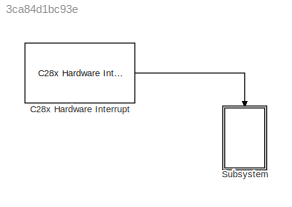
MODEL slx_3ca84d1bc93e
KIND model
CONFIG AbsTol = auto
CONFIG EnableMultiTasking = on
CONFIG FixedStep = auto
CONFIG MaxStep = auto
CONFIG MinStep = auto
CONFIG RelTol = 1e-3
CONFIG SampleTimeConstraint = Unconstrained
CONFIG Solver = FixedStepDiscrete
CONFIG SolverName = FixedStepDiscrete
CONFIG StartTime = 0.0
CONFIG StopTime = 1
BLOCK [Reference] C28x Hardware Interrupt  REF=c2000lib/Scheduling/C28x Hardware Interrupt
  Ports = [0, 1]
  SourceBlock = c2000lib/Scheduling/C28x Hardware Interrupt
  SourceProductBaseCode = TIC2000
  SourceProductName = Embedded Coder Support Package for Texas Instruments C2000 Processors
  SourceType = C28x Interrupt Block
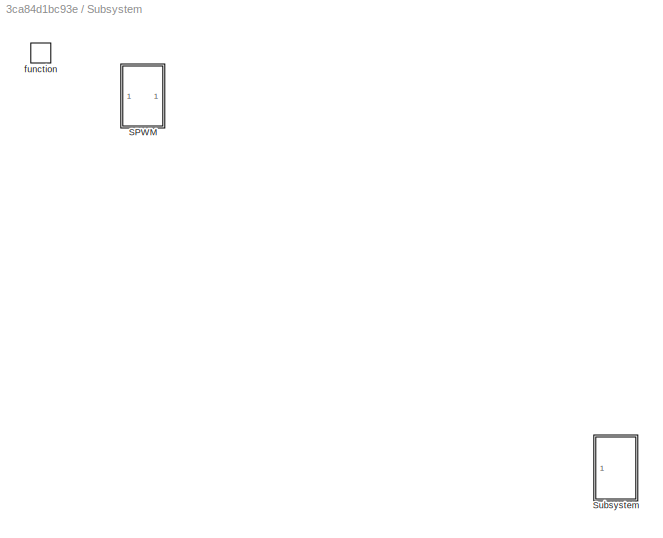
BLOCK [SubSystem] Subsystem
  Ports = [0, 0, 0, 1]
  RequestExecContextInheritance = off
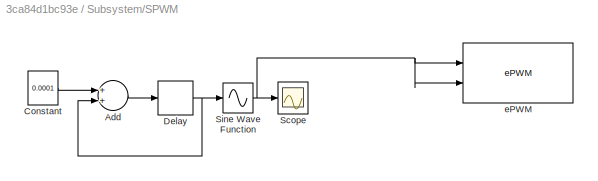
BLOCK [SubSystem] Subsystem/SPWM
  Ports = []
  RequestExecContextInheritance = off
BLOCK [Sum] Subsystem/SPWM/Add
  InputSameDT = off
  OutDataTypeStr = Inherit: Inherit via internal rule
  Ports = [2, 1]
  SaturateOnIntegerOverflow = off
BLOCK [Constant] Subsystem/SPWM/Constant
  Value = 0.0001
  VectorParams1D = off
BLOCK [Delay] Subsystem/SPWM/Delay
  DelayLength = 1
  InputPortMap = u0
  Ports = [1, 1]
BLOCK [Scope] Subsystem/SPWM/Scope
  Floating = off
  NumInputPorts = 1
  Ports = [1]
  ScopeSpecificationString = Simulink.scopes.TimeScopeBlockCfg('CurrentConfiguration', extmgr.ConfigurationSet(extmgr.Configuration('Core','General UI',true),extmgr.Configuration('Core','Source UI',true),extmgr.Configuration('Sources','WiredSimulink',true),extmgr.Configuration('Visuals','Time Domain',true,'SerializedDisplays',{struct('MinYLimReal','46.82438','MaxYLimReal','78.58057','YLabelReal','','MinYLimMag','46.82438','Ma...<+1415ch>
BLOCK [Sin] Subsystem/SPWM/Sine Wave Function
  Amplitude = 40
  Bias = 50
  Frequency = 2
  Ports = [1, 1]
  SampleTime = 0
  TimeSource = Use external signal
BLOCK [Reference] Subsystem/SPWM/ePWM  REF=c2802xlib/ePWM
  Ports = [2]
  SourceBlock = c2802xlib/ePWM
  SourceProductBaseCode = TIC2000
  SourceProductName = Embedded Coder Support Package for Texas Instruments C2000 Processors
  SourceType = C2802x/03x/05x/06x/M3x/37x/07x/004x ePWM
  UserDataPersistent = on
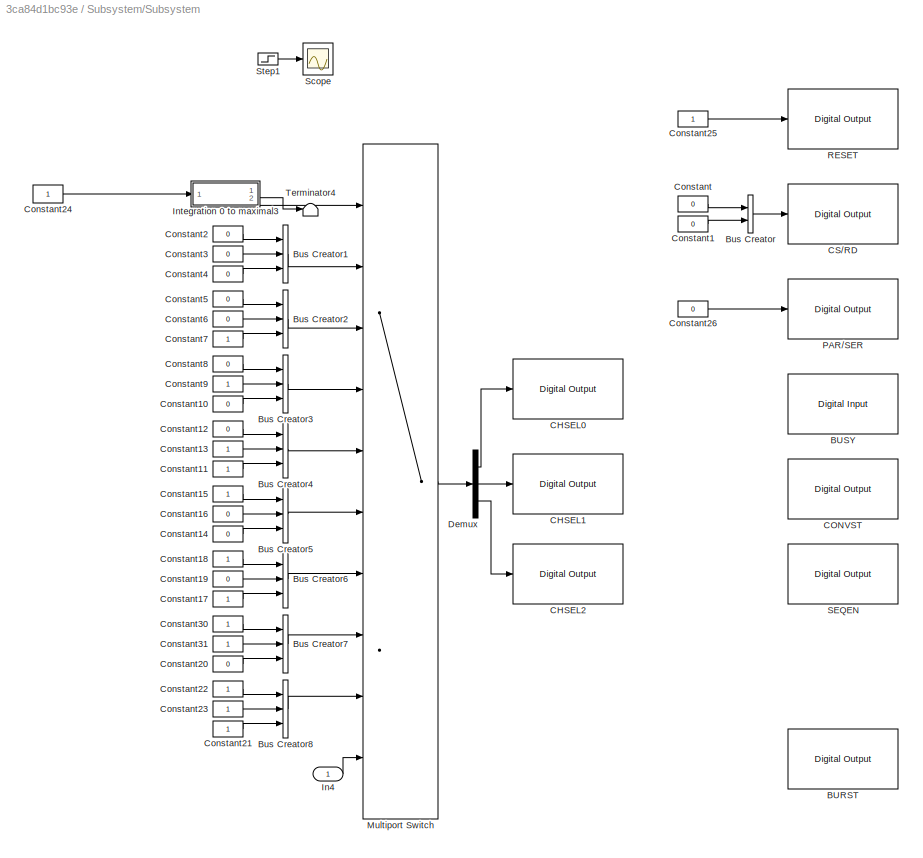
BLOCK [SubSystem] Subsystem/Subsystem
  Ports = [1]
  RequestExecContextInheritance = off
BLOCK [Reference] Subsystem/Subsystem/BURST  REF=c2837xDlib/Digital Output
  Ports = [1]
  SourceBlock = c2837xDlib/Digital Output
  SourceProductBaseCode = TIC2000
  SourceProductName = Embedded Coder Support Package for Texas Instruments C2000 Processors
  SourceType = F2837x GPIO Digital Output
  UserDataPersistent = on
BLOCK [Reference] Subsystem/Subsystem/BUSY  REF=c2837xDlib/Digital Input
  Ports = [0, 1]
  SourceBlock = c2837xDlib/Digital Input
  SourceProductBaseCode = TIC2000
  SourceProductName = Embedded Coder Support Package for Texas Instruments C2000 Processors
  SourceType = F2837x GPIO Digital Input
  UserDataPersistent = on
BLOCK [BusCreator] Subsystem/Subsystem/Bus Creator
  DisplayOption = bar
  InheritFromInputs = on
  Inputs = 2
  Ports = [2, 1]
BLOCK [BusCreator] Subsystem/Subsystem/Bus Creator1
  DisplayOption = bar
  InheritFromInputs = on
  Inputs = 3
  Ports = [3, 1]
BLOCK [BusCreator] Subsystem/Subsystem/Bus Creator2
  DisplayOption = bar
  InheritFromInputs = on
  Inputs = 3
  Ports = [3, 1]
BLOCK [BusCreator] Subsystem/Subsystem/Bus Creator3
  DisplayOption = bar
  InheritFromInputs = on
  Inputs = 3
  Ports = [3, 1]
BLOCK [BusCreator] Subsystem/Subsystem/Bus Creator4
  DisplayOption = bar
  InheritFromInputs = on
  Inputs = 3
  Ports = [3, 1]
BLOCK [BusCreator] Subsystem/Subsystem/Bus Creator5
  DisplayOption = bar
  InheritFromInputs = on
  Inputs = 3
  Ports = [3, 1]
BLOCK [BusCreator] Subsystem/Subsystem/Bus Creator6
  DisplayOption = bar
  InheritFromInputs = on
  Inputs = 3
  Ports = [3, 1]
BLOCK [BusCreator] Subsystem/Subsystem/Bus Creator7
  DisplayOption = bar
  InheritFromInputs = on
  Inputs = 3
  Ports = [3, 1]
BLOCK [BusCreator] Subsystem/Subsystem/Bus Creator8
  DisplayOption = bar
  InheritFromInputs = on
  Inputs = 3
  Ports = [3, 1]
BLOCK [Reference] Subsystem/Subsystem/CHSEL0  REF=c2837xDlib/Digital Output
  Ports = [1]
  SourceBlock = c2837xDlib/Digital Output
  SourceProductBaseCode = TIC2000
  SourceProductName = Embedded Coder Support Package for Texas Instruments C2000 Processors
  SourceType = F2837x GPIO Digital Output
  UserDataPersistent = on
BLOCK [Reference] Subsystem/Subsystem/CHSEL1  REF=c2837xDlib/Digital Output
  Ports = [1]
  SourceBlock = c2837xDlib/Digital Output
  SourceProductBaseCode = TIC2000
  SourceProductName = Embedded Coder Support Package for Texas Instruments C2000 Processors
  SourceType = F2837x GPIO Digital Output
  UserDataPersistent = on
BLOCK [Reference] Subsystem/Subsystem/CHSEL2  REF=c2837xDlib/Digital Output
  Ports = [1]
  SourceBlock = c2837xDlib/Digital Output
  SourceProductBaseCode = TIC2000
  SourceProductName = Embedded Coder Support Package for Texas Instruments C2000 Processors
  SourceType = F2837x GPIO Digital Output
  UserDataPersistent = on
BLOCK [Reference] Subsystem/Subsystem/CONVST  REF=c2837xDlib/Digital Output
  Ports = [1]
  SourceBlock = c2837xDlib/Digital Output
  SourceProductBaseCode = TIC2000
  SourceProductName = Embedded Coder Support Package for Texas Instruments C2000 Processors
  SourceType = F2837x GPIO Digital Output
  UserDataPersistent = on
BLOCK [Reference] Subsystem/Subsystem/CS//RD  REF=c2837xDlib/Digital Output
  Ports = [1]
  SourceBlock = c2837xDlib/Digital Output
  SourceProductBaseCode = TIC2000
  SourceProductName = Embedded Coder Support Package for Texas Instruments C2000 Processors
  SourceType = F2837x GPIO Digital Output
  UserDataPersistent = on
BLOCK [Constant] Subsystem/Subsystem/Constant
  OutDataTypeStr = boolean
  Value = 0
BLOCK [Constant] Subsystem/Subsystem/Constant1
  OutDataTypeStr = boolean
  Value = 0
BLOCK [Constant] Subsystem/Subsystem/Constant10
  OutDataTypeStr = boolean
  Value = 0
BLOCK [Constant] Subsystem/Subsystem/Constant11
  OutDataTypeStr = boolean
BLOCK [Constant] Subsystem/Subsystem/Constant12
  OutDataTypeStr = boolean
  Value = 0
BLOCK [Constant] Subsystem/Subsystem/Constant13
  OutDataTypeStr = boolean
BLOCK [Constant] Subsystem/Subsystem/Constant14
  OutDataTypeStr = boolean
  Value = 0
BLOCK [Constant] Subsystem/Subsystem/Constant15
  OutDataTypeStr = boolean
BLOCK [Constant] Subsystem/Subsystem/Constant16
  OutDataTypeStr = boolean
  Value = 0
BLOCK [Constant] Subsystem/Subsystem/Constant17
  OutDataTypeStr = boolean
BLOCK [Constant] Subsystem/Subsystem/Constant18
  OutDataTypeStr = boolean
BLOCK [Constant] Subsystem/Subsystem/Constant19
  OutDataTypeStr = boolean
  Value = 0
BLOCK [Constant] Subsystem/Subsystem/Constant2
  OutDataTypeStr = boolean
  Value = 0
BLOCK [Constant] Subsystem/Subsystem/Constant20
  OutDataTypeStr = boolean
  Value = 0
BLOCK [Constant] Subsystem/Subsystem/Constant21
  OutDataTypeStr = boolean
BLOCK [Constant] Subsystem/Subsystem/Constant22
  OutDataTypeStr = boolean
BLOCK [Constant] Subsystem/Subsystem/Constant23
  OutDataTypeStr = boolean
BLOCK [Constant] Subsystem/Subsystem/Constant24
  OutDataTypeStr = uint16
BLOCK [Constant] Subsystem/Subsystem/Constant25
  OutDataTypeStr = boolean
BLOCK [Constant] Subsystem/Subsystem/Constant26
  OutDataTypeStr = boolean
  Value = 0
BLOCK [Constant] Subsystem/Subsystem/Constant3
  OutDataTypeStr = boolean
  Value = 0
BLOCK [Constant] Subsystem/Subsystem/Constant30
  OutDataTypeStr = boolean
BLOCK [Constant] Subsystem/Subsystem/Constant31
  OutDataTypeStr = boolean
BLOCK [Constant] Subsystem/Subsystem/Constant4
  OutDataTypeStr = boolean
  Value = 0
BLOCK [Constant] Subsystem/Subsystem/Constant5
  OutDataTypeStr = boolean
  Value = 0
BLOCK [Constant] Subsystem/Subsystem/Constant6
  OutDataTypeStr = boolean
  Value = 0
BLOCK [Constant] Subsystem/Subsystem/Constant7
  OutDataTypeStr = boolean
BLOCK [Constant] Subsystem/Subsystem/Constant8
  OutDataTypeStr = boolean
  Value = 0
BLOCK [Constant] Subsystem/Subsystem/Constant9
  OutDataTypeStr = boolean
BLOCK [Demux] Subsystem/Subsystem/Demux
  DisplayOption = bar
  Outputs = 3
  Ports = [1, 3]
BLOCK [Inport] Subsystem/Subsystem/In4
  IconDisplay = Port number
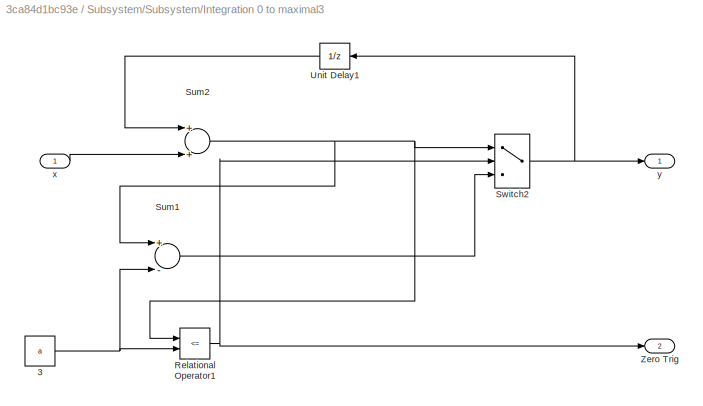
BLOCK [SubSystem] Subsystem/Subsystem/Integration 0 to maximal3
  Ports = [1, 2]
  RequestExecContextInheritance = off
BLOCK [Constant] Subsystem/Subsystem/Integration 0 to maximal3/3
  OutDataTypeStr = fixdt(1,32,16)
  Value = a
BLOCK [RelationalOperator] Subsystem/Subsystem/Integration 0 to maximal3/Relational Operator1
  InputSameDT = off
  Operator = <=
  Ports = [2, 1]
BLOCK [Sum] Subsystem/Subsystem/Integration 0 to maximal3/Sum1
  InputSameDT = off
  Inputs = +-
  OutDataTypeStr = Inherit: Inherit via internal rule
  Ports = [2, 1]
  SaturateOnIntegerOverflow = off
BLOCK [Sum] Subsystem/Subsystem/Integration 0 to maximal3/Sum2
  InputSameDT = off
  OutDataTypeStr = Inherit: Inherit via internal rule
  Ports = [2, 1]
  SaturateOnIntegerOverflow = off
BLOCK [Switch] Subsystem/Subsystem/Integration 0 to maximal3/Switch2
  Criteria = u2 > Threshold
BLOCK [UnitDelay] Subsystem/Subsystem/Integration 0 to maximal3/Unit Delay1
  InputProcessing = Elements as channels (sample based)
  SampleTime = -1
BLOCK [Outport] Subsystem/Subsystem/Integration 0 to maximal3/Zero Trig
  IconDisplay = Port number
  Port = 2
BLOCK [Inport] Subsystem/Subsystem/Integration 0 to maximal3/x
  IconDisplay = Port number
BLOCK [Outport] Subsystem/Subsystem/Integration 0 to maximal3/y
  IconDisplay = Port number
BLOCK [MultiPortSwitch] Subsystem/Subsystem/Multiport Switch
  DataPortForDefault = Additional data port
  InputSameDT = off
  Inputs = 8
  OutDataTypeStr = uint16
  Ports = [10, 1]
  SaturateOnIntegerOverflow = off
BLOCK [Reference] Subsystem/Subsystem/PAR//SER  REF=c2837xDlib/Digital Output
  Ports = [1]
  SourceBlock = c2837xDlib/Digital Output
  SourceProductBaseCode = TIC2000
  SourceProductName = Embedded Coder Support Package for Texas Instruments C2000 Processors
  SourceType = F2837x GPIO Digital Output
  UserDataPersistent = on
BLOCK [Reference] Subsystem/Subsystem/RESET  REF=c2837xDlib/Digital Output
  Ports = [1]
  SourceBlock = c2837xDlib/Digital Output
  SourceProductBaseCode = TIC2000
  SourceProductName = Embedded Coder Support Package for Texas Instruments C2000 Processors
  SourceType = F2837x GPIO Digital Output
  UserDataPersistent = on
BLOCK [Reference] Subsystem/Subsystem/SEQEN  REF=c2837xDlib/Digital Output
  Ports = [1]
  SourceBlock = c2837xDlib/Digital Output
  SourceProductBaseCode = TIC2000
  SourceProductName = Embedded Coder Support Package for Texas Instruments C2000 Processors
  SourceType = F2837x GPIO Digital Output
  UserDataPersistent = on
BLOCK [Scope] Subsystem/Subsystem/Scope
  Floating = off
  NumInputPorts = 1
  Ports = [1]
  ScopeSpecificationString = Simulink.scopes.TimeScopeBlockCfg('CurrentConfiguration', extmgr.ConfigurationSet(extmgr.Configuration('Core','General UI',true),extmgr.Configuration('Core','Source UI',true),extmgr.Configuration('Sources','WiredSimulink',true,'DataLoggingVariableName','ScopeData1'),extmgr.Configuration('Visuals','Time Domain',true,'SerializedDisplays',{struct('MinYLimReal','-0.125','MaxYLimReal','1.125','YLabelRe...<+1377ch>
BLOCK [Step] Subsystem/Subsystem/Step1
  Time = 0.01
BLOCK [Terminator] Subsystem/Subsystem/Terminator4
BLOCK [TriggerPort] Subsystem/function
  Ports = []
  StatesWhenEnabling = held
  TriggerType = function-call
  VariantControl = (inherit)
LINE C28x Hardware Interrupt:1 -> Subsystem:trigger
LINE Subsystem/SPWM/Add:1 -> Subsystem/SPWM/Delay:1
LINE Subsystem/SPWM/Constant:1 -> Subsystem/SPWM/Add:1
NET Subsystem/SPWM/Delay:1 -> Subsystem/SPWM/Add:2, Subsystem/SPWM/Sine Wave Function:1
NET Subsystem/SPWM/Sine Wave Function:1 -> Subsystem/SPWM/Scope:1, Subsystem/SPWM/ePWM:1, Subsystem/SPWM/ePWM:2
LINE Subsystem/Subsystem/Bus Creator1:1 -> Subsystem/Subsystem/Multiport Switch:2
LINE Subsystem/Subsystem/Bus Creator2:1 -> Subsystem/Subsystem/Multiport Switch:3
LINE Subsystem/Subsystem/Bus Creator3:1 -> Subsystem/Subsystem/Multiport Switch:4
LINE Subsystem/Subsystem/Bus Creator4:1 -> Subsystem/Subsystem/Multiport Switch:5
LINE Subsystem/Subsystem/Bus Creator5:1 -> Subsystem/Subsystem/Multiport Switch:6
LINE Subsystem/Subsystem/Bus Creator6:1 -> Subsystem/Subsystem/Multiport Switch:7
LINE Subsystem/Subsystem/Bus Creator7:1 -> Subsystem/Subsystem/Multiport Switch:8
LINE Subsystem/Subsystem/Bus Creator8:1 -> Subsystem/Subsystem/Multiport Switch:9
LINE Subsystem/Subsystem/Bus Creator:1 -> Subsystem/Subsystem/CS//RD:1
LINE Subsystem/Subsystem/Constant10:1 -> Subsystem/Subsystem/Bus Creator3:3
LINE Subsystem/Subsystem/Constant11:1 -> Subsystem/Subsystem/Bus Creator4:3
LINE Subsystem/Subsystem/Constant12:1 -> Subsystem/Subsystem/Bus Creator4:1
LINE Subsystem/Subsystem/Constant13:1 -> Subsystem/Subsystem/Bus Creator4:2
LINE Subsystem/Subsystem/Constant14:1 -> Subsystem/Subsystem/Bus Creator5:3
LINE Subsystem/Subsystem/Constant15:1 -> Subsystem/Subsystem/Bus Creator5:1
LINE Subsystem/Subsystem/Constant16:1 -> Subsystem/Subsystem/Bus Creator5:2
LINE Subsystem/Subsystem/Constant17:1 -> Subsystem/Subsystem/Bus Creator6:3
LINE Subsystem/Subsystem/Constant18:1 -> Subsystem/Subsystem/Bus Creator6:1
LINE Subsystem/Subsystem/Constant19:1 -> Subsystem/Subsystem/Bus Creator6:2
LINE Subsystem/Subsystem/Constant1:1 -> Subsystem/Subsystem/Bus Creator:2
LINE Subsystem/Subsystem/Constant20:1 -> Subsystem/Subsystem/Bus Creator7:3
LINE Subsystem/Subsystem/Constant21:1 -> Subsystem/Subsystem/Bus Creator8:3
LINE Subsystem/Subsystem/Constant22:1 -> Subsystem/Subsystem/Bus Creator8:1
LINE Subsystem/Subsystem/Constant23:1 -> Subsystem/Subsystem/Bus Creator8:2
LINE Subsystem/Subsystem/Constant24:1 -> Subsystem/Subsystem/Integration 0 to maximal3:1
LINE Subsystem/Subsystem/Constant25:1 -> Subsystem/Subsystem/RESET:1
LINE Subsystem/Subsystem/Constant26:1 -> Subsystem/Subsystem/PAR//SER:1
LINE Subsystem/Subsystem/Constant2:1 -> Subsystem/Subsystem/Bus Creator1:1
LINE Subsystem/Subsystem/Constant30:1 -> Subsystem/Subsystem/Bus Creator7:1
LINE Subsystem/Subsystem/Constant31:1 -> Subsystem/Subsystem/Bus Creator7:2
LINE Subsystem/Subsystem/Constant3:1 -> Subsystem/Subsystem/Bus Creator1:2
LINE Subsystem/Subsystem/Constant4:1 -> Subsystem/Subsystem/Bus Creator1:3
LINE Subsystem/Subsystem/Constant5:1 -> Subsystem/Subsystem/Bus Creator2:1
LINE Subsystem/Subsystem/Constant6:1 -> Subsystem/Subsystem/Bus Creator2:2
LINE Subsystem/Subsystem/Constant7:1 -> Subsystem/Subsystem/Bus Creator2:3
LINE Subsystem/Subsystem/Constant8:1 -> Subsystem/Subsystem/Bus Creator3:1
LINE Subsystem/Subsystem/Constant9:1 -> Subsystem/Subsystem/Bus Creator3:2
LINE Subsystem/Subsystem/Constant:1 -> Subsystem/Subsystem/Bus Creator:1
LINE Subsystem/Subsystem/Demux:1 -> Subsystem/Subsystem/CHSEL0:1
LINE Subsystem/Subsystem/Demux:2 -> Subsystem/Subsystem/CHSEL1:1
LINE Subsystem/Subsystem/Demux:3 -> Subsystem/Subsystem/CHSEL2:1
LINE Subsystem/Subsystem/In4:1 -> Subsystem/Subsystem/Multiport Switch:10
NET Subsystem/Subsystem/Integration 0 to maximal3/3:1 -> Subsystem/Subsystem/Integration 0 to maximal3/Relational Operator1:2, Subsystem/Subsystem/Integration 0 to maximal3/Sum1:2
NET Subsystem/Subsystem/Integration 0 to maximal3/Relational Operator1:1 -> Subsystem/Subsystem/Integration 0 to maximal3/Switch2:2, Subsystem/Subsystem/Integration 0 to maximal3/Zero Trig:1
LINE Subsystem/Subsystem/Integration 0 to maximal3/Sum1:1 -> Subsystem/Subsystem/Integration 0 to maximal3/Switch2:3
NET Subsystem/Subsystem/Integration 0 to maximal3/Sum2:1 -> Subsystem/Subsystem/Integration 0 to maximal3/Relational Operator1:1, Subsystem/Subsystem/Integration 0 to maximal3/Sum1:1, Subsystem/Subsystem/Integration 0 to maximal3/Switch2:1
NET Subsystem/Subsystem/Integration 0 to maximal3/Switch2:1 -> Subsystem/Subsystem/Integration 0 to maximal3/Unit Delay1:1, Subsystem/Subsystem/Integration 0 to maximal3/y:1
LINE Subsystem/Subsystem/Integration 0 to maximal3/Unit Delay1:1 -> Subsystem/Subsystem/Integration 0 to maximal3/Sum2:1
LINE Subsystem/Subsystem/Integration 0 to maximal3/x:1 -> Subsystem/Subsystem/Integration 0 to maximal3/Sum2:2
LINE Subsystem/Subsystem/Integration 0 to maximal3:1 -> Subsystem/Subsystem/Multiport Switch:1
LINE Subsystem/Subsystem/Integration 0 to maximal3:2 -> Subsystem/Subsystem/Terminator4:1
LINE Subsystem/Subsystem/Multiport Switch:1 -> Subsystem/Subsystem/Demux:1
LINE Subsystem/Subsystem/Step1:1 -> Subsystem/Subsystem/Scope:1
note: NET lines group one-source signal fan-out (src -> all destinations, sorted); 1:1 wires keep LINE
